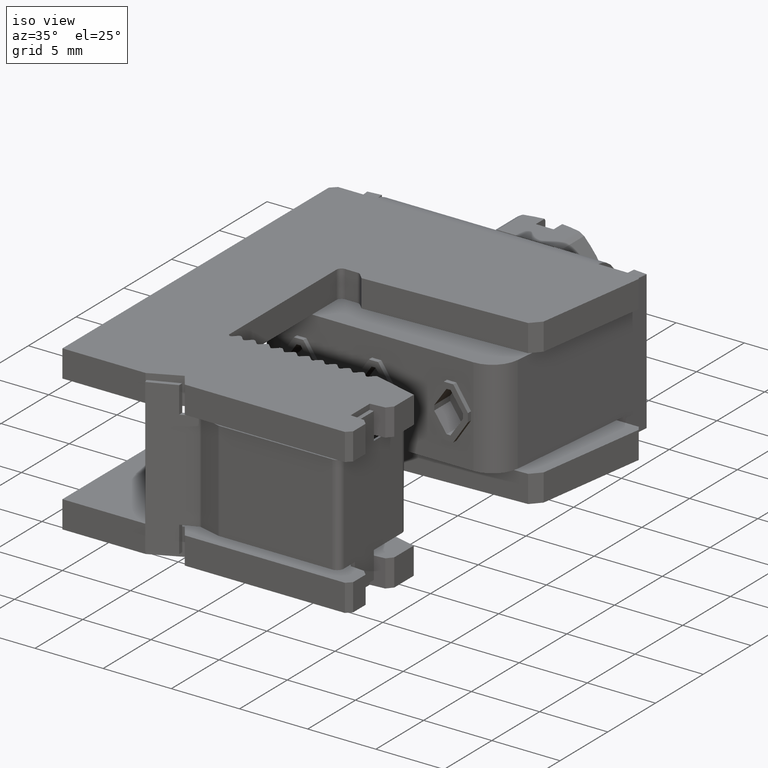
[diagram: clean part render]
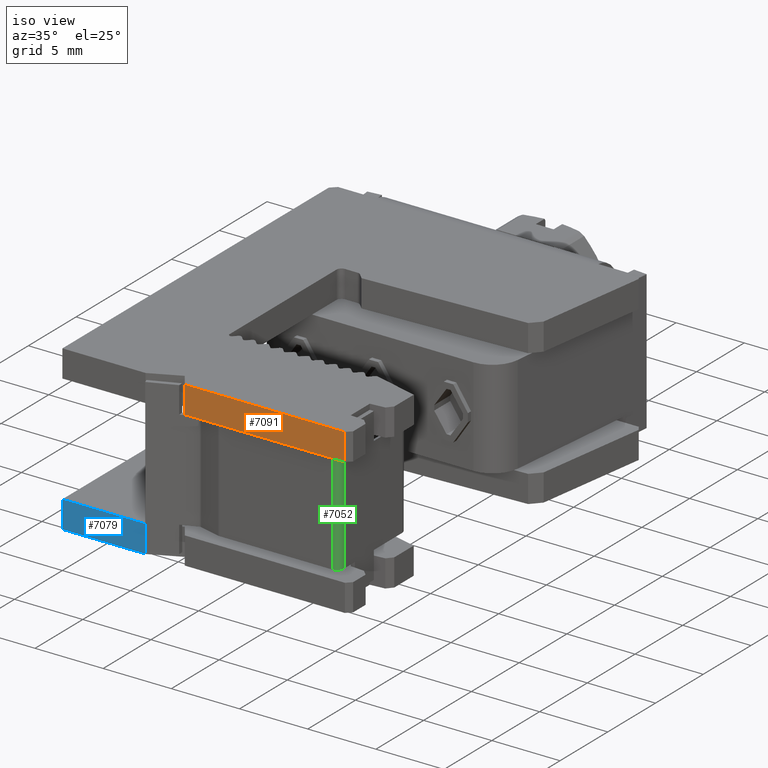
[diagram: same view with three faces highlighted in distinct colors, each labeled with its STEP entity id]
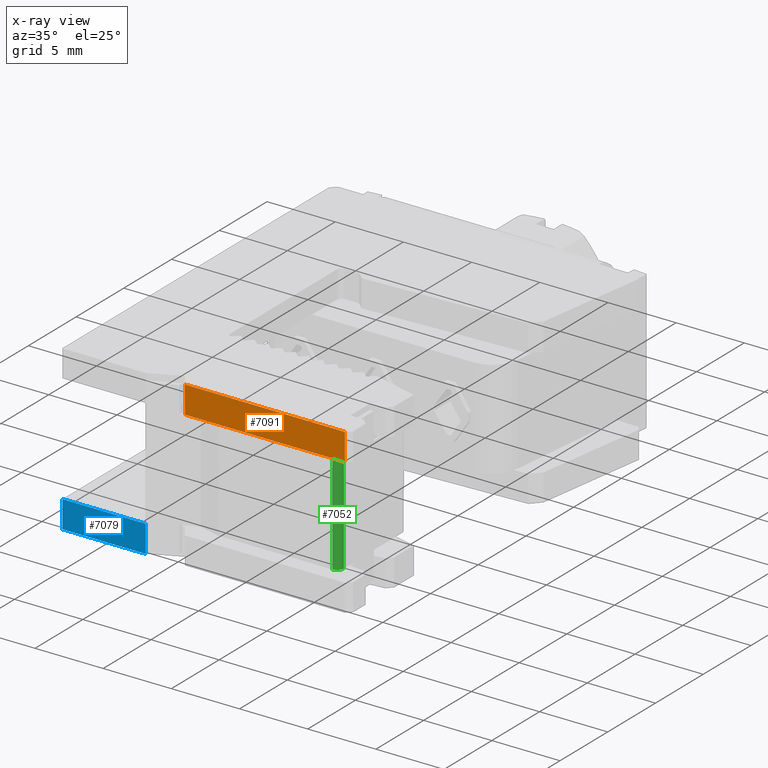
[diagram: x-ray of the same camera — body ghosted, the three highlighted faces saturated]
A machine part, iso view with three faces highlighted in distinct colors.
The next image is the same camera in x-ray (body ghosted, the three faces saturated) — at least one of them is partly hidden behind the body in this view.
Their STEP definitions:

[orange] entity #7091 — the highlighted planar face has unit normal (0, 1, 0).
#1230 = CARTESIAN_POINT ( 'NONE',  ( 7.822759001598525300, -1.369000000010278200, 12.00000000000000000 ) ) ;
#1244 = LINE ( 'NONE', #1230, #8468 ) ;
#1245 = DIRECTION ( 'NONE',  ( 1.000000000000000000, 0.0000000000000000000, -0.0000000000000000000 ) ) ;
#1306 = CARTESIAN_POINT ( 'NONE',  ( 18.17927823012253100, -1.369000000010278200, 12.00000000000000000 ) ) ;
#1315 = LINE ( 'NONE', #1306, #8562 ) ;
#1342 = DIRECTION ( 'NONE',  ( -0.0000000000000000000, 0.0000000000000000000, -1.000000000000000000 ) ) ;
#1583 = CARTESIAN_POINT ( 'NONE',  ( 6.440703507310095300, -1.369000000010278200, 12.00000000000000000 ) ) ;
#1610 = LINE ( 'NONE', #1583, #8403 ) ;
#1611 = DIRECTION ( 'NONE',  ( 0.0000000000000000000, -0.0000000000000000000, 1.000000000000000000 ) ) ;
#1710 = VERTEX_POINT ( 'NONE', #5384 ) ;
#1772 = VERTEX_POINT ( 'NONE', #4306 ) ;
#1787 = VERTEX_POINT ( 'NONE', #4335 ) ;
#1879 = VERTEX_POINT ( 'NONE', #4441 ) ;
#2232 = ORIENTED_EDGE ( 'NONE', *, *, #7229, .F. ) ;
#2233 = ORIENTED_EDGE ( 'NONE', *, *, #7202, .F. ) ;
#2255 = ORIENTED_EDGE ( 'NONE', *, *, #7295, .T. ) ;
#2284 = ORIENTED_EDGE ( 'NONE', *, *, #7160, .F. ) ;
#4306 = CARTESIAN_POINT ( 'NONE',  ( 18.17927823012253400, -1.369000000010274000, 12.00000000000000000 ) ) ;
#4335 = CARTESIAN_POINT ( 'NONE',  ( 6.440703507310096200, -1.369000000010279100, 9.999999999999994700 ) ) ;
#4441 = CARTESIAN_POINT ( 'NONE',  ( 18.17927823012253100, -1.369000000010275100, 9.999999999999994700 ) ) ;
#5384 = CARTESIAN_POINT ( 'NONE',  ( 6.440703507310097100, -1.369000000010279100, 12.00000000000000000 ) ) ;
#5776 = EDGE_LOOP ( 'NONE', ( #2284, #2255, #2232, #2233 ) ) ;
#7091 = ADVANCED_FACE ( 'NONE', ( #10498 ), #10457, .F. ) ;
#7160 = EDGE_CURVE ( 'NONE', #1787, #1710, #1610, .T. ) ;
#7202 = EDGE_CURVE ( 'NONE', #1710, #1772, #1244, .T. ) ;
#7229 = EDGE_CURVE ( 'NONE', #1772, #1879, #1315, .T. ) ;
#7295 = EDGE_CURVE ( 'NONE', #1787, #1879, #10019, .T. ) ;
#8335 = AXIS2_PLACEMENT_3D ( 'NONE', #10497, #10460, #10461 ) ;
#8403 = VECTOR ( 'NONE', #1611, 1000.000000000000000 ) ;
#8468 = VECTOR ( 'NONE', #1245, 1000.000000000000000 ) ;
#8562 = VECTOR ( 'NONE', #1342, 1000.000000000000000 ) ;
#8614 = VECTOR ( 'NONE', #10021, 1000.000000000000000 ) ;
#10019 = LINE ( 'NONE', #10025, #8614 ) ;
#10021 = DIRECTION ( 'NONE',  ( 1.000000000000000000, -3.217610781289461000E-033, 2.171974429317391200E-017 ) ) ;
#10025 = CARTESIAN_POINT ( 'NONE',  ( -12.72331469668145600, -1.369000000010278700, 9.999999999999994700 ) ) ;
#10457 = PLANE ( 'NONE',  #8335 ) ;
#10460 = DIRECTION ( 'NONE',  ( 0.0000000000000000000, 1.000000000000000000, 0.0000000000000000000 ) ) ;
#10461 = DIRECTION ( 'NONE',  ( 0.0000000000000000000, -0.0000000000000000000, 1.000000000000000000 ) ) ;
#10497 = CARTESIAN_POINT ( 'NONE',  ( 7.822759001598525300, -1.369000000010278200, 12.00000000000000000 ) ) ;
#10498 = FACE_OUTER_BOUND ( 'NONE', #5776, .T. ) ;

[blue] entity #7079 — the highlighted planar face has unit normal (0, 1, 0).
#1729 = VERTEX_POINT ( 'NONE', #5355 ) ;
#1738 = VERTEX_POINT ( 'NONE', #4298 ) ;
#1774 = VERTEX_POINT ( 'NONE', #4313 ) ;
#1783 = VERTEX_POINT ( 'NONE', #4299 ) ;
#4298 = CARTESIAN_POINT ( 'NONE',  ( 3.571739011085233600, -1.369000000010277300, -2.602085213965210600E-015 ) ) ;
#4299 = CARTESIAN_POINT ( 'NONE',  ( 3.571739011085231400, -1.369000000010278200, 1.999999999999996700 ) ) ;
#4313 = CARTESIAN_POINT ( 'NONE',  ( -2.533721769870787500, -1.369000000010278700, 1.999999999999995800 ) ) ;
#5355 = CARTESIAN_POINT ( 'NONE',  ( -2.533721769870787500, -1.369000000010278400, 0.0000000000000000000 ) ) ;
#5797 = EDGE_LOOP ( 'NONE', ( #8866, #8883, #8850, #8878 ) ) ;
#7079 = ADVANCED_FACE ( 'NONE', ( #10409 ), #10422, .F. ) ;
#7462 = EDGE_CURVE ( 'NONE', #1738, #1729, #9603, .T. ) ;
#7606 = EDGE_CURVE ( 'NONE', #1783, #1774, #9454, .T. ) ;
#7607 = EDGE_CURVE ( 'NONE', #1774, #1729, #9465, .T. ) ;
#7615 = EDGE_CURVE ( 'NONE', #1783, #1738, #9466, .T. ) ;
#7641 = VECTOR ( 'NONE', #10885, 1000.000000000000000 ) ;
#7881 = VECTOR ( 'NONE', #9483, 1000.000000000000000 ) ;
#7960 = VECTOR ( 'NONE', #9472, 1000.000000000000000 ) ;
#8331 = AXIS2_PLACEMENT_3D ( 'NONE', #10401, #10440, #10436 ) ;
#8355 = VECTOR ( 'NONE', #9528, 1000.000000000000000 ) ;
#8850 = ORIENTED_EDGE ( 'NONE', *, *, #7606, .T. ) ;
#8866 = ORIENTED_EDGE ( 'NONE', *, *, #7462, .F. ) ;
#8878 = ORIENTED_EDGE ( 'NONE', *, *, #7607, .T. ) ;
#8883 = ORIENTED_EDGE ( 'NONE', *, *, #7615, .F. ) ;
#9454 = LINE ( 'NONE', #9467, #7881 ) ;
#9455 = CARTESIAN_POINT ( 'NONE',  ( -2.533721769870787000, -1.369000000010278700, 12.00000000000000000 ) ) ;
#9465 = LINE ( 'NONE', #9455, #7960 ) ;
#9466 = LINE ( 'NONE', #9521, #8355 ) ;
#9467 = CARTESIAN_POINT ( 'NONE',  ( -12.72331469668145600, -1.369000000010278700, 1.999999999999996200 ) ) ;
#9472 = DIRECTION ( 'NONE',  ( -0.0000000000000000000, -0.0000000000000000000, -1.000000000000000000 ) ) ;
#9483 = DIRECTION ( 'NONE',  ( -1.000000000000000000, 1.430049236128649500E-033, -1.447982952878260900E-017 ) ) ;
#9521 = CARTESIAN_POINT ( 'NONE',  ( 3.571739011085234100, -1.369000000010278200, 12.00000000000000000 ) ) ;
#9528 = DIRECTION ( 'NONE',  ( -0.0000000000000000000, 0.0000000000000000000, -1.000000000000000000 ) ) ;
#9599 = CARTESIAN_POINT ( 'NONE',  ( 7.822759001598525300, -1.369000000010278200, 0.0000000000000000000 ) ) ;
#9603 = LINE ( 'NONE', #9599, #7641 ) ;
#10401 = CARTESIAN_POINT ( 'NONE',  ( 7.822759001598525300, -1.369000000010278200, 12.00000000000000000 ) ) ;
#10409 = FACE_OUTER_BOUND ( 'NONE', #5797, .T. ) ;
#10422 = PLANE ( 'NONE',  #8331 ) ;
#10436 = DIRECTION ( 'NONE',  ( 0.0000000000000000000, -0.0000000000000000000, 1.000000000000000000 ) ) ;
#10440 = DIRECTION ( 'NONE',  ( 0.0000000000000000000, 1.000000000000000000, 0.0000000000000000000 ) ) ;
#10885 = DIRECTION ( 'NONE',  ( -1.000000000000000000, -0.0000000000000000000, 0.0000000000000000000 ) ) ;

[green] entity #7052 — the highlighted cylindrical surface (edge-blend (fillet) strip) has radius 0.5 mm, axis along (-0, -0, -1).
#1657 = VERTEX_POINT ( 'NONE', #6170 ) ;
#1683 = VERTEX_POINT ( 'NONE', #6161 ) ;
#2913 = VERTEX_POINT ( 'NONE', #4721 ) ;
#2918 = VERTEX_POINT ( 'NONE', #4719 ) ;
#3345 = LINE ( 'NONE', #3361, #7661 ) ;
#3346 = DIRECTION ( 'NONE',  ( 0.0000000000000000000, 0.0000000000000000000, 1.000000000000000000 ) ) ;
#3361 = CARTESIAN_POINT ( 'NONE',  ( 17.40677823012386600, -0.3640000000092946700, 11.59999999999999300 ) ) ;
#4719 = CARTESIAN_POINT ( 'NONE',  ( 16.90677823012378100, -0.8640000000093821500, 2.349999999999994300 ) ) ;
#4721 = CARTESIAN_POINT ( 'NONE',  ( 16.90677823012378100, -0.8640000000093384100, 9.649999999999991500 ) ) ;
#5665 = EDGE_LOOP ( 'NONE', ( #8926, #8949, #8947, #8986 ) ) ;
#6161 = CARTESIAN_POINT ( 'NONE',  ( 17.40677823012386600, -0.3640000000092946100, 9.649999999999991500 ) ) ;
#6170 = CARTESIAN_POINT ( 'NONE',  ( 17.40677823012386600, -0.3640000000092946100, 2.349999999999994300 ) ) ;
#7052 = ADVANCED_FACE ( 'NONE', ( #10270 ), #10255, .T. ) ;
#7452 = EDGE_CURVE ( 'NONE', #1657, #1683, #3345, .T. ) ;
#7486 = EDGE_CURVE ( 'NONE', #2913, #2918, #9071, .T. ) ;
#7490 = EDGE_CURVE ( 'NONE', #1683, #2913, #7723, .T. ) ;
#7513 = EDGE_CURVE ( 'NONE', #2918, #1657, #7726, .T. ) ;
#7656 = VECTOR ( 'NONE', #9103, 1000.000000000000000 ) ;
#7661 = VECTOR ( 'NONE', #3346, 1000.000000000000000 ) ;
#7705 = AXIS2_PLACEMENT_3D ( 'NONE', #9113, #9108, #9096 ) ;
#7723 = CIRCLE ( 'NONE', #7705, 0.5000000000000871500 ) ;
#7726 = CIRCLE ( 'NONE', #7730, 0.5000000000000871500 ) ;
#7730 = AXIS2_PLACEMENT_3D ( 'NONE', #9186, #9203, #9167 ) ;
#8368 = AXIS2_PLACEMENT_3D ( 'NONE', #10267, #10256, #10257 ) ;
#8926 = ORIENTED_EDGE ( 'NONE', *, *, #7490, .T. ) ;
#8947 = ORIENTED_EDGE ( 'NONE', *, *, #7513, .T. ) ;
#8949 = ORIENTED_EDGE ( 'NONE', *, *, #7486, .T. ) ;
#8986 = ORIENTED_EDGE ( 'NONE', *, *, #7452, .T. ) ;
#9071 = LINE ( 'NONE', #9110, #7656 ) ;
#9096 = DIRECTION ( 'NONE',  ( -1.000000000000000000, 0.0000000000000000000, 0.0000000000000000000 ) ) ;
#9103 = DIRECTION ( 'NONE',  ( -0.0000000000000000000, -0.0000000000000000000, -1.000000000000000000 ) ) ;
#9108 = DIRECTION ( 'NONE',  ( -0.0000000000000000000, -0.0000000000000000000, -1.000000000000000000 ) ) ;
#9110 = CARTESIAN_POINT ( 'NONE',  ( 16.90677823012378100, -0.8640000000093818200, 11.59999999999999300 ) ) ;
#9113 = CARTESIAN_POINT ( 'NONE',  ( 16.90677823012378100, -0.3640000000092946700, 9.649999999999991500 ) ) ;
#9167 = DIRECTION ( 'NONE',  ( -1.000000000000000000, 0.0000000000000000000, 0.0000000000000000000 ) ) ;
#9186 = CARTESIAN_POINT ( 'NONE',  ( 16.90677823012378100, -0.3640000000092946700, 2.349999999999994300 ) ) ;
#9203 = DIRECTION ( 'NONE',  ( 0.0000000000000000000, 0.0000000000000000000, 1.000000000000000000 ) ) ;
#10255 = CYLINDRICAL_SURFACE ( 'NONE', #8368, 0.5000000000000871500 ) ;
#10256 = DIRECTION ( 'NONE',  ( -0.0000000000000000000, -0.0000000000000000000, -1.000000000000000000 ) ) ;
#10257 = DIRECTION ( 'NONE',  ( -1.000000000000000000, 0.0000000000000000000, 0.0000000000000000000 ) ) ;
#10267 = CARTESIAN_POINT ( 'NONE',  ( 16.90677823012378100, -0.3640000000092946700, 11.59999999999999300 ) ) ;
#10270 = FACE_OUTER_BOUND ( 'NONE', #5665, .T. ) ;